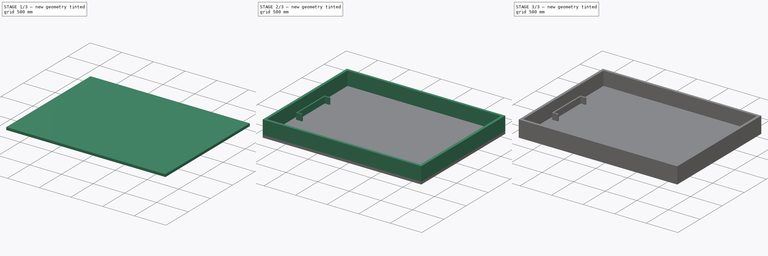
[diagram: build sequence overview — one tinted view per stage of 3, left to right]
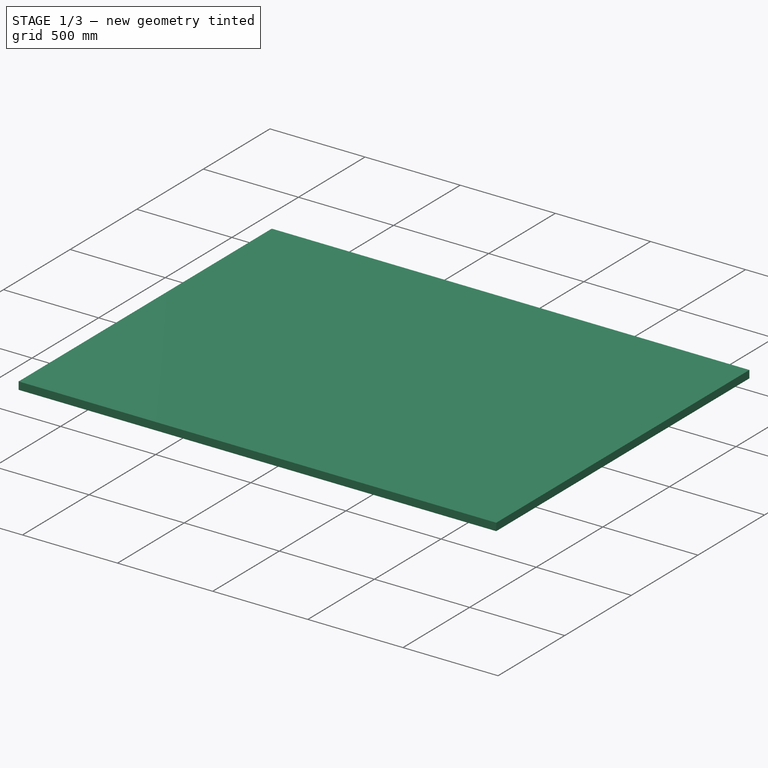
[diagram: stage 1 of 3 — iso view after this stage's code; geometry added in this stage tinted green]
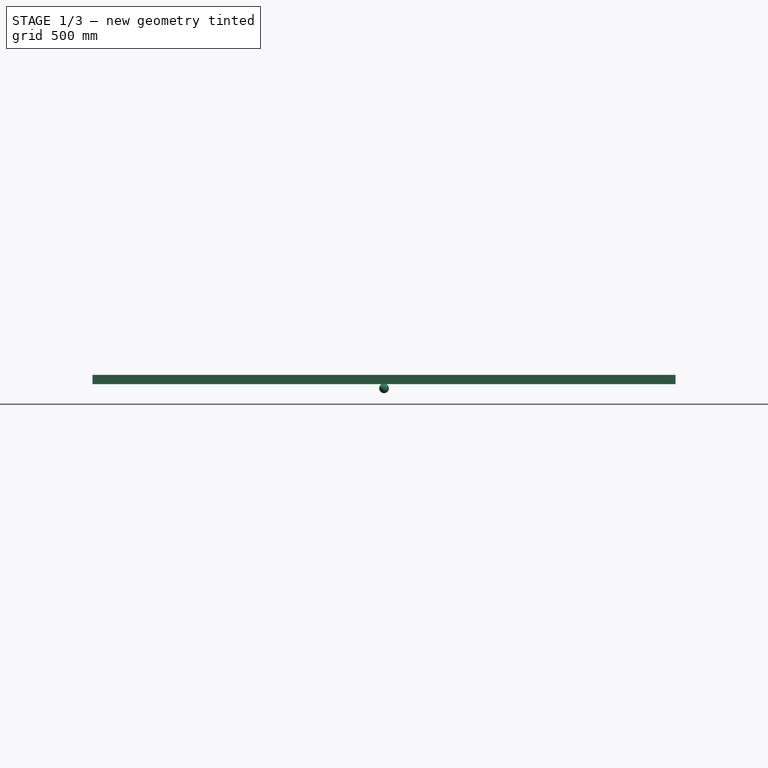
[diagram: stage 1 of 3 — front view after this stage's code; geometry added in this stage tinted green]
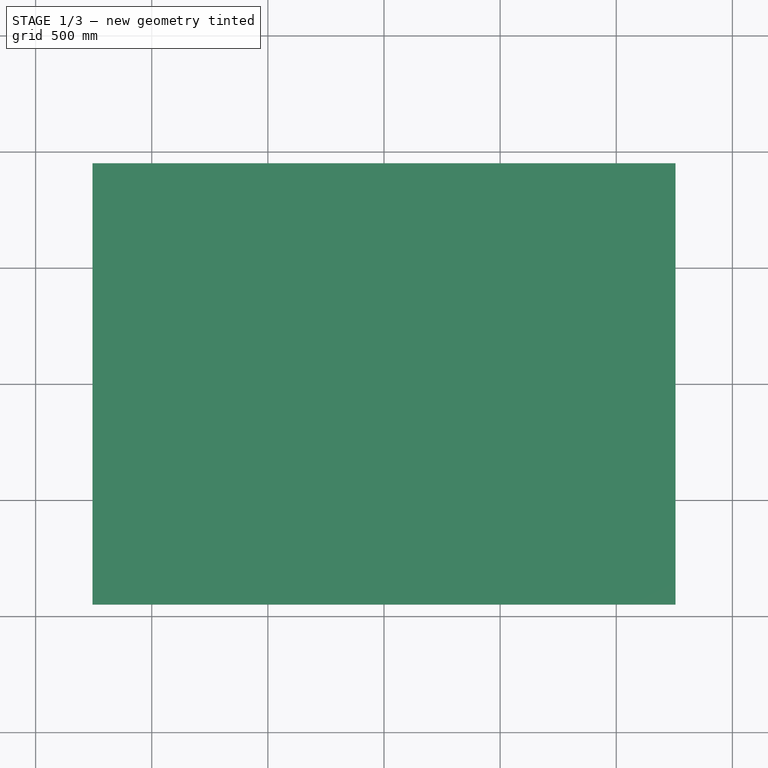
[diagram: stage 1 of 3 — top view after this stage's code; geometry added in this stage tinted green]
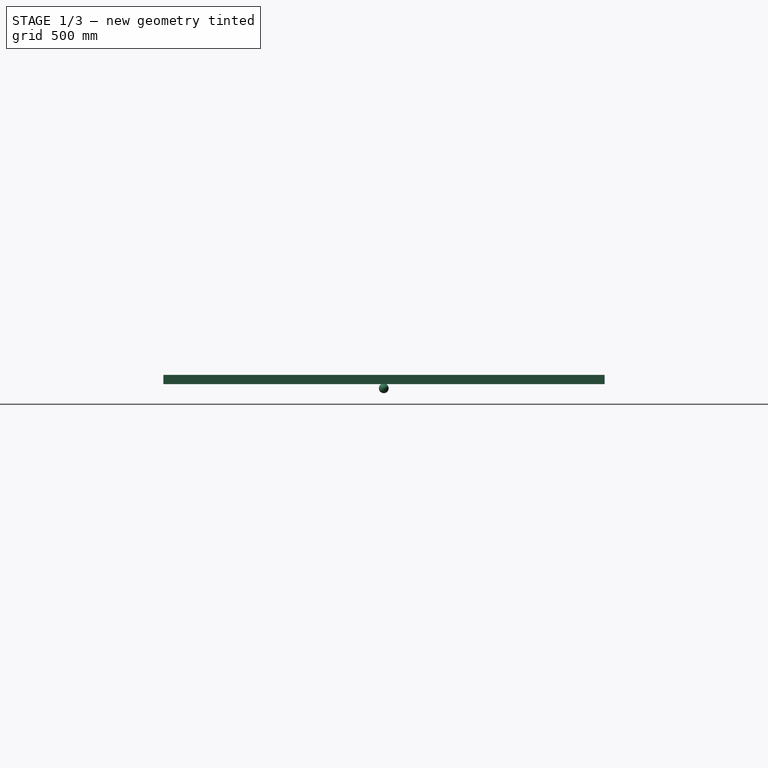
[diagram: stage 1 of 3 — right view after this stage's code; geometry added in this stage tinted green]
FCSTD DOCUMENT  (FreeCAD 0.21R33668 +7 (Git))
Label: Field
License: All rights reserved
LicenseURL: https://en.wikipedia.org/wiki/All_rights_reserved
objects: Sketcher::SketchObject×6, PartDesign::Pad×6, PartDesign::Body×1, Part::Sphere×1
note: 20 computed .brp shape members not serialized (recipe doc carries the construction recipe); baked Part::Feature solids carry a one-line shape summary decoded from their .brp

FEATURE [Sketcher::SketchObject] Sketch
  FullyConstrained = true
  MapMode = 5
  Support = -> [XY_Plane]
  sketch-geometry (4):
    g0: LineSegment StartX=-1255 StartY=950 StartZ=0 EndX=1255 EndY=950 EndZ=0
    g1: LineSegment StartX=1255 StartY=950 StartZ=0 EndX=1255 EndY=-950 EndZ=0
    g2: LineSegment StartX=1255 StartY=-950 StartZ=0 EndX=-1255 EndY=-950 EndZ=0
    g3: LineSegment StartX=-1255 StartY=-950 StartZ=0 EndX=-1255 EndY=950 EndZ=0
  constraints (10):
    c: Coincident(g0,g1)
    c: Coincident(g1,g2)
    c: Coincident(g2,g3)
    c: Coincident(g3,g0)
    c: Horizontal(g0)
    c: Vertical(g3)
    c: Symmetric(g2,g1,g-2)
    c: Symmetric(g1,g0,g-1)
    c: DistanceX(g0,g0) = 2510
    c: DistanceY(g1,g1) = 1900
FEATURE [PartDesign::Pad] Pad
  Direction = (0,0,1)
  Length = 40
  Length2 = 10
  Profile = -> Sketch
  ReferenceAxis = -> Sketch [N_Axis]
  Type = 0
FEATURE [PartDesign::Body] Body  label="Field"
  Group = -> [Sketch,Pad,Sketch001,Pad001,Sketch002,Pad002,Sketch003,Pad003,Sketch004,Pad004,Sketch005,Pad005]
  Origin = -> Origin
  Placement = pos=(0,0,-79) rot=(0,0,1;0rad)
  Tip = -> Pad005
FEATURE [Part::Sphere] Sphere  label="Sphère"
  Angle1 = -90
  Angle2 = 90
  Angle3 = 360
  AttacherType = Attacher::AttachEngine3D
  Placement = pos=(0.2,-1,-18) rot=(0,0,1;0rad)
  Radius = 21
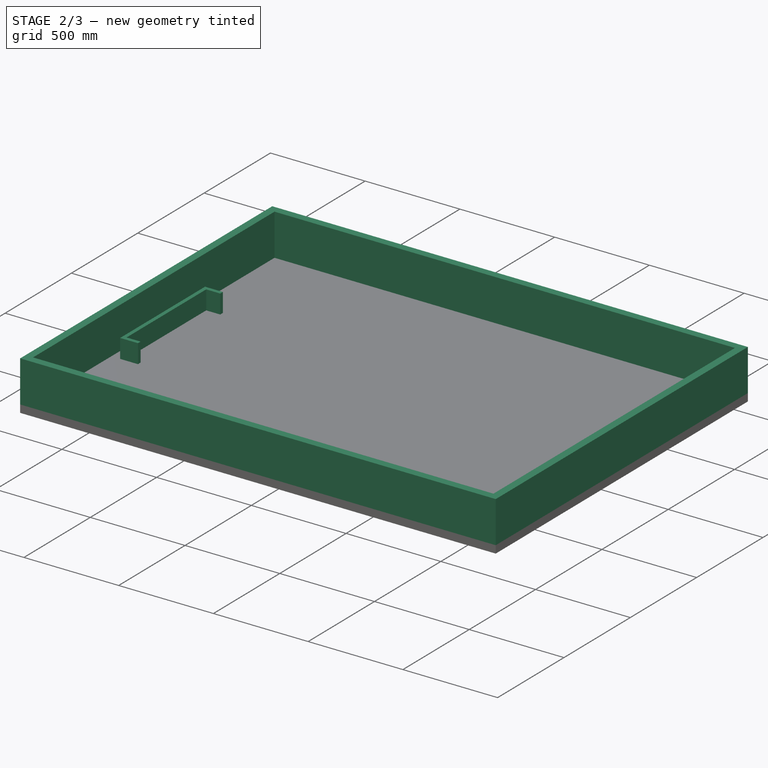
[diagram: stage 2 of 3 — iso view after this stage's code; geometry added in this stage tinted green]
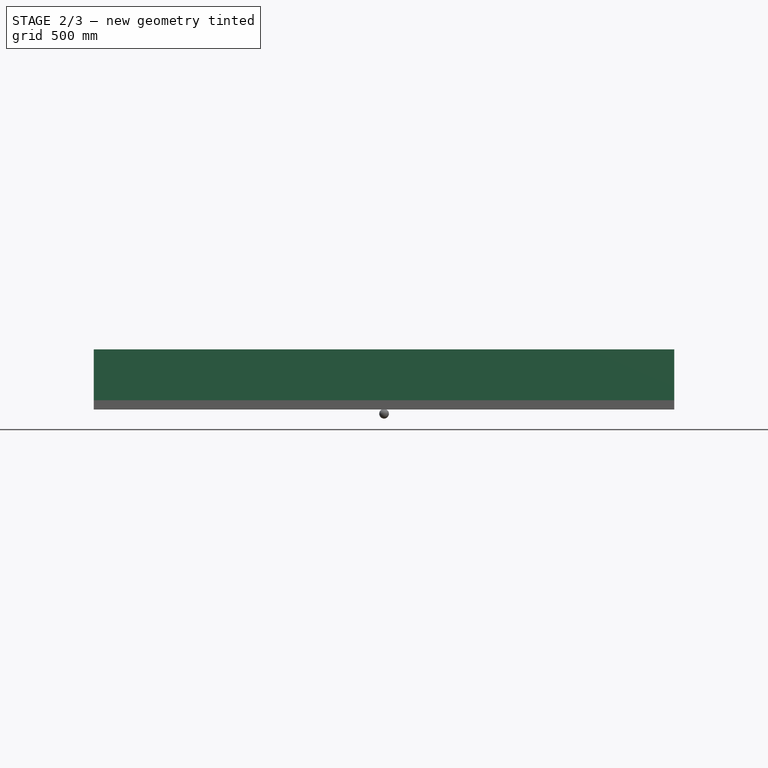
[diagram: stage 2 of 3 — front view after this stage's code; geometry added in this stage tinted green]
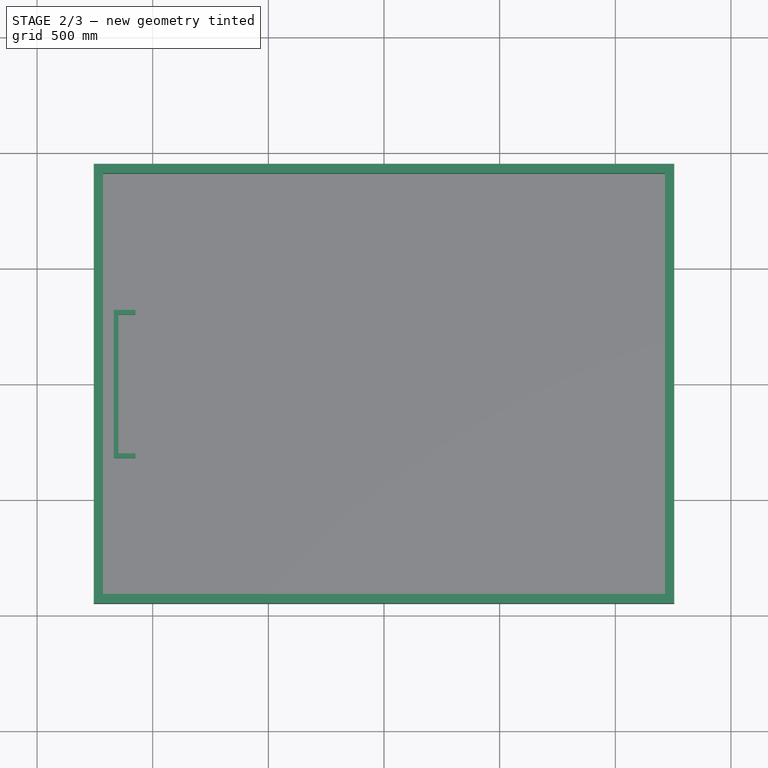
[diagram: stage 2 of 3 — top view after this stage's code; geometry added in this stage tinted green]
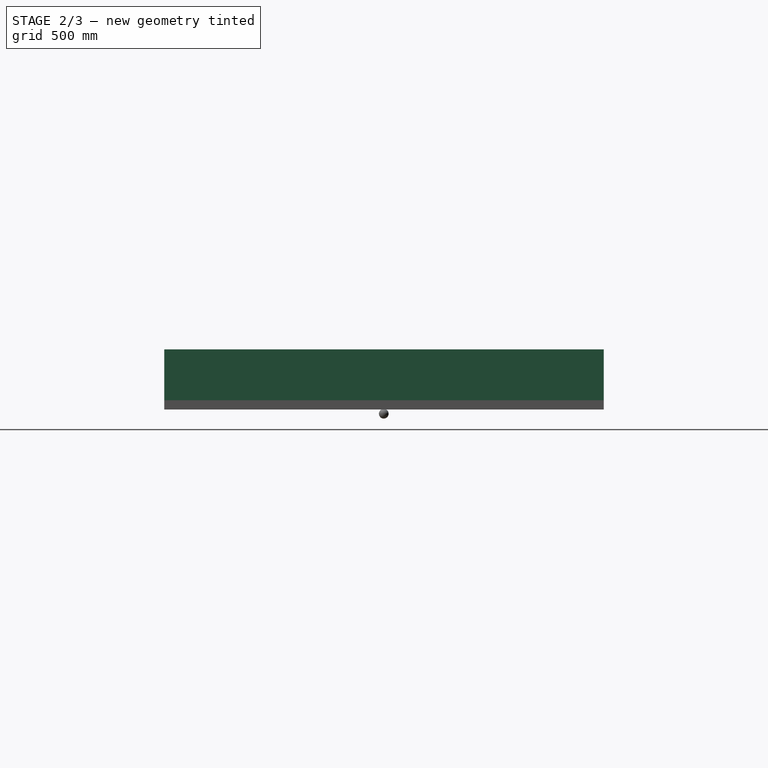
[diagram: stage 2 of 3 — right view after this stage's code; geometry added in this stage tinted green]
FEATURE [Sketcher::SketchObject] Sketch001
  FullyConstrained = true
  MapMode = 5
  Placement = pos=(0,0,40) rot=(0,0,1;0rad)
  Support = -> [Pad]
  sketch-geometry (8):
    g0: LineSegment StartX=-1215 StartY=910 StartZ=0 EndX=1215 EndY=910 EndZ=0
    g1: LineSegment StartX=1215 StartY=910 StartZ=0 EndX=1215 EndY=-910 EndZ=0
    g2: LineSegment StartX=1215 StartY=-910 StartZ=0 EndX=-1215 EndY=-910 EndZ=0
    g3: LineSegment StartX=-1215 StartY=-910 StartZ=0 EndX=-1215 EndY=910 EndZ=0
    g4: LineSegment StartX=-1255 StartY=950 StartZ=0 EndX=1255 EndY=950 EndZ=0
    g5: LineSegment StartX=1255 StartY=950 StartZ=0 EndX=1255 EndY=-950 EndZ=0
    g6: LineSegment StartX=1255 StartY=-950 StartZ=0 EndX=-1255 EndY=-950 EndZ=0
    g7: LineSegment StartX=-1255 StartY=-950 StartZ=0 EndX=-1255 EndY=950 EndZ=0
  constraints (20):
    c: Coincident(g0,g1)
    c: Coincident(g1,g2)
    c: Coincident(g2,g3)
    c: Coincident(g3,g0)
    c: Horizontal(g2)
    c: Vertical(g3)
    c: DistanceX(g0,g0) = 2430
    c: DistanceY(g1,g1) = 1820
    c: Symmetric(g0,g0,g-2)
    c: Symmetric(g0,g1,g-1)
    c: Coincident(g4,g5)
    c: Coincident(g5,g6)
    c: Coincident(g6,g7)
    c: Coincident(g7,g4)
    c: Horizontal(g6)
    c: Vertical(g7)
    c: Symmetric(g4,g4,g-2)
    c: Symmetric(g4,g5,g-1)
    c: DistanceY(g5,g5) = 1900
    c: DistanceX(g4,g4) = 2510
FEATURE [PartDesign::Pad] Pad001
  BaseFeature = -> Pad
  Direction = (0,0,1)
  Length = 220
  Length2 = 10
  Profile = -> Sketch001
  ReferenceAxis = -> Sketch001 [N_Axis]
  Type = 0
FEATURE [Sketcher::SketchObject] Sketch002
  FullyConstrained = true
  MapMode = 5
  Placement = pos=(0,0,40) rot=(0,0,1;0rad)
  Support = -> [Pad001]
  sketch-geometry (32):
    g0: LineSegment StartX=-1095 StartY=790 StartZ=0 EndX=1095 EndY=790 EndZ=0
    g1: LineSegment StartX=1095 StartY=790 StartZ=0 EndX=1095 EndY=-790 EndZ=0
    g2: LineSegment StartX=1095 StartY=-790 StartZ=0 EndX=-1095 EndY=-790 EndZ=0
    g3: LineSegment StartX=-1095 StartY=-790 StartZ=0 EndX=-1095 EndY=790 EndZ=0
    g4: LineSegment StartX=-1074.51 StartY=770 StartZ=0 EndX=1075.49 EndY=770 EndZ=0
    g5: LineSegment StartX=1075.49 StartY=-770 StartZ=0 EndX=-1074.51 EndY=-770 EndZ=0
    g6: LineSegment StartX=-1074.51 StartY=770 StartZ=0 EndX=-1074.51 EndY=400 EndZ=0
    g7: LineSegment StartX=-1074.51 StartY=-770 StartZ=0 EndX=-1074.51 EndY=-400 EndZ=0
    g8: LineSegment StartX=-1074.51 StartY=400 StartZ=0 EndX=-974.509 EndY=400 EndZ=0
    g9: ArcOfCircle CenterX=-974.509 CenterY=250 CenterZ=0 NormalX=0 NormalY=0 NormalZ=1 AngleXU=0 Radius=150 StartAngle=0 EndAngle=1.5708
    g10: LineSegment StartX=-1074.51 StartY=-400 StartZ=0 EndX=-974.509 EndY=-400 EndZ=0
    g11: ArcOfCircle CenterX=-974.509 CenterY=-250 CenterZ=0 NormalX=0 NormalY=0 NormalZ=1 AngleXU=0 Radius=150 StartAngle=4.71239 EndAngle=6.28319
    g12: LineSegment StartX=-824.509 StartY=-250 StartZ=0 EndX=-824.509 EndY=250 EndZ=0
    g13: LineSegment StartX=-1074.51 StartY=-380 StartZ=0 EndX=-974.509 EndY=-380 EndZ=0
    g14: LineSegment StartX=-1074.51 StartY=380 StartZ=0 EndX=-974.509 EndY=380 EndZ=0
    g15: LineSegment StartX=-1074.51 StartY=380 StartZ=0 EndX=-1074.51 EndY=-380 EndZ=0
    g16: LineSegment StartX=-844.509 StartY=250 StartZ=0 EndX=-844.509 EndY=-250 EndZ=0
    g17: ArcOfCircle CenterX=-974.509 CenterY=-250 CenterZ=0 NormalX=0 NormalY=0 NormalZ=1 AngleXU=0 Radius=130 StartAngle=4.71239 EndAngle=6.28319
    g18: ArcOfCircle CenterX=-974.509 CenterY=250 CenterZ=0 NormalX=0 NormalY=0 NormalZ=1 AngleXU=0 Radius=130 StartAngle=6.28319 EndAngle=7.85398
    g19: LineSegment StartX=1075.49 StartY=-770 StartZ=0 EndX=1075.49 EndY=-400 EndZ=0
    g20: LineSegment StartX=1075.49 StartY=770 StartZ=0 EndX=1075.49 EndY=400 EndZ=0
    g21: LineSegment StartX=1075.49 StartY=400 StartZ=0 EndX=975.491 EndY=400 EndZ=0
    g22: ArcOfCircle CenterX=975.491 CenterY=250 CenterZ=0 NormalX=0 NormalY=0 NormalZ=1 AngleXU=0 Radius=150 StartAngle=1.5708 EndAngle=3.14159
    g23: LineSegment StartX=1075.49 StartY=-400 StartZ=0 EndX=975.491 EndY=-400 EndZ=0
    g24: ArcOfCircle CenterX=975.491 CenterY=-250 CenterZ=0 NormalX=0 NormalY=0 NormalZ=1 AngleXU=0 Radius=150 StartAngle=3.14159 EndAngle=4.71239
    g25: LineSegment StartX=825.491 StartY=-250 StartZ=0 EndX=825.491 EndY=250 EndZ=0
    g26: LineSegment StartX=1075.49 StartY=380 StartZ=0 EndX=975.491 EndY=380 EndZ=0
    g27: LineSegment StartX=845.491 StartY=250 StartZ=0 EndX=845.491 EndY=-250 EndZ=0
    g28: ArcOfCircle CenterX=975.491 CenterY=250 CenterZ=0 NormalX=0 NormalY=0 NormalZ=1 AngleXU=0 Radius=130 StartAngle=1.5708 EndAngle=3.14159
    g29: LineSegment StartX=1075.49 StartY=-380 StartZ=0 EndX=975.491 EndY=-380 EndZ=0
    g30: ArcOfCircle CenterX=975.491 CenterY=-250 CenterZ=0 NormalX=0 NormalY=0 NormalZ=1 AngleXU=0 Radius=130 StartAngle=3.14159 EndAngle=4.71239
    g31: LineSegment StartX=1075.49 StartY=-380 StartZ=0 EndX=1075.49 EndY=380 EndZ=0
  constraints (96):
    c: Coincident(g0,g1)
    c: Coincident(g1,g2)
    c: Coincident(g2,g3)
    c: Coincident(g3,g0)
    c: Horizontal(g2)
    c: Vertical(g3)
    c: Symmetric(g1,g0,g-1)
    c: Symmetric(g0,g0,g-2)
    c: DistanceX(g0,g0) = 2190
    c: DistanceY(g1,g1) = 1580
    c: Horizontal(g5)
    c: Symmetric(g5,g4,g-1)
    c: DistanceX(g4,g4) = 2150
    c: DistanceY(g5,g4) = 1540
    c: Coincident(g6,g4)
    c: Vertical(g6)
    c: Coincident(g7,g5)
    c: Vertical(g7)
    c: DistanceY(g7,g6) = 800
    c: Symmetric(g6,g7,g-1)
    c: Coincident(g8,g6)
    c: Horizontal(g8)
    c: Coincident(g9,g8)
    c: DistanceX(g6,g9) = 250
    c: Coincident(g10,g7)
    c: Horizontal(g10)
    c: Coincident(g11,g10)
    c: Vertical(g12)
    c: DistanceX(g8,g9) = 150
    c: DistanceX(g10,g11) = 150
    c: Horizontal(g13)
    c: DistanceY(g7,g13) = 20
    c: Equal(g13,g10)
    c: Horizontal(g14)
    c: Equal(g8,g14)
    c: DistanceY(g14,g6) = 20
    c: Coincident(g15,g14)
    c: Coincident(g15,g13)
    c: Vertical(g15)
    c: Vertical(g16)
    c: Equal(g16,g12)
    c: DistanceX(g16,g9) = 20
    c: Coincident(g17,g11)
    c: Coincident(g17,g13)
    c: Coincident(g17,g16)
    c: Coincident(g18,g9)
    c: Coincident(g18,g14)
    c: Coincident(g18,g16)
    c: Radius(g9) = 150
    c: Radius(g18) = 130
    c: Radius(g17) = 130
    c: Coincident(g12,g11)
    c: Coincident(g12,g9)
    c: DistanceY(g9,g8) = 150
    c: Coincident(g19,g5)
    c: Vertical(g19)
    c: Coincident(g20,g4)
    c: DistanceY(g19,g20) = 800
    c: Symmetric(g20,g19,g-1)
    c: Coincident(g21,g20)
    c: Horizontal(g21)
    c: Coincident(g22,g21)
    c: Coincident(g23,g19)
    c: Horizontal(g23)
    c: Coincident(g24,g23)
    c: DistanceX(g24,g19) = 250
    c: DistanceX(g22,g20) = 250
    c: Horizontal(g26)
    c: Equal(g21,g26)
    c: DistanceX(g22,g22) = 150
    c: DistanceY(g26,g20) = 20
    c: DistanceY(g22,g21) = 150
    c: Vertical(g27)
    c: DistanceX(g24,g27) = 20
    c: Coincident(g28,g22)
    c: Coincident(g28,g26)
    c: Coincident(g28,g27)
    c: Horizontal(g29)
    c: Coincident(g30,g27)
    c: Coincident(g30,g29)
    c: DistanceY(g19,g29) = 20
    c: Coincident(g31,g29)
    c: Coincident(g31,g26)
    c: Vertical(g31)
    c: Equal(g29,g23)
    c: Equal(g27,g25)
    c: Radius(g30) = 130
    c: Radius(g28) = 130
    c: Radius(g24) = 150
    c: DistanceY(g29,g27) = 130
    c: Coincident(g24,g25)
    c: DistanceX(g24,g23) = 150
    c: DistanceX(g27,g29) = 130
    c: DistanceY(g23,g24) = 150
    c: Coincident(g22,g25)
    c: Horizontal(g4)
FEATURE [PartDesign::Pad] Pad002
  BaseFeature = -> Pad001
  Direction = (0,0,1)
  Length = 0.001
  Length2 = 10
  Profile = -> Sketch002
  ReferenceAxis = -> Sketch002 [N_Axis]
  Type = 0
FEATURE [Sketcher::SketchObject] Sketch003
  ExternalGeometry = -> [Pad002]
  FullyConstrained = true
  MapMode = 5
  Placement = pos=(0,0,40) rot=(0,0,1;0rad)
  Support = -> [Pad002]
  sketch-geometry (8):
    g0: LineSegment StartX=-1148.51 StartY=300 StartZ=0 EndX=-1148.51 EndY=-300 EndZ=0
    g1: LineSegment StartX=-1148.51 StartY=300 StartZ=0 EndX=-1074.51 EndY=300 EndZ=0
    g2: LineSegment StartX=-1148.51 StartY=-300 StartZ=0 EndX=-1074.51 EndY=-300 EndZ=0
    g3: LineSegment StartX=-1074.51 StartY=-300 StartZ=0 EndX=-1074.51 EndY=-320 EndZ=0
    g4: LineSegment StartX=-1074.51 StartY=-320 StartZ=0 EndX=-1168.51 EndY=-320 EndZ=0
    g5: LineSegment StartX=-1074.51 StartY=300 StartZ=0 EndX=-1074.51 EndY=320 EndZ=0
    g6: LineSegment StartX=-1074.51 StartY=320 StartZ=0 EndX=-1168.51 EndY=320 EndZ=0
    g7: LineSegment StartX=-1168.51 StartY=320 StartZ=0 EndX=-1168.51 EndY=-320 EndZ=0
  constraints (23):
    c: Symmetric(g0,g0,g-1)
    c: DistanceY(g0,g0) = 600
    c: Coincident(g1,g0)
    c: Horizontal(g1)
    c: Coincident(g2,g0)
    c: Horizontal(g2)
    c: Equal(g1,g2)
    c: DistanceX(g1,g1) = 74
    c: Coincident(g3,g2)
    c: Vertical(g3)
    c: DistanceY(g3,g3) = 20
    c: Coincident(g4,g3)
    c: Horizontal(g4)
    c: DistanceX(g4,g0) = 20
    c: Coincident(g5,g1)
    c: Vertical(g5)
    c: Coincident(g6,g5)
    c: Horizontal(g6)
    c: DistanceY(g5,g5) = 20
    c: DistanceX(g6,g0) = 20
    c: Coincident(g7,g6)
    c: Coincident(g7,g4)
    c: PointOnObject(g5,g-4)
FEATURE [PartDesign::Pad] Pad003
  BaseFeature = -> Pad002
  Direction = (0,0,1)
  Length = 100
  Length2 = 10
  Profile = -> Sketch003
  ReferenceAxis = -> Sketch003 [N_Axis]
  Type = 0
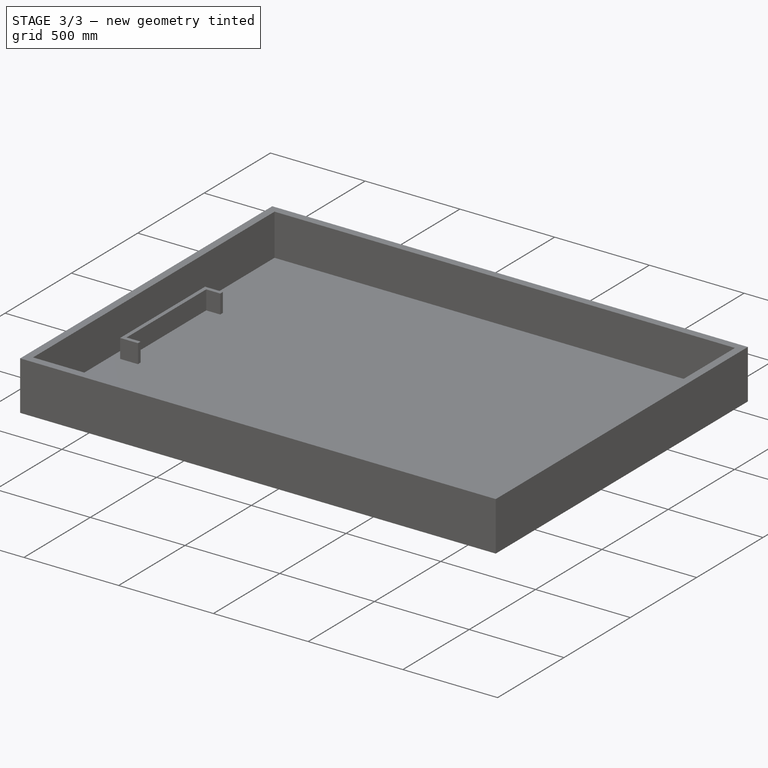
[diagram: stage 3 of 3 — iso view after this stage's code; geometry added in this stage tinted green]
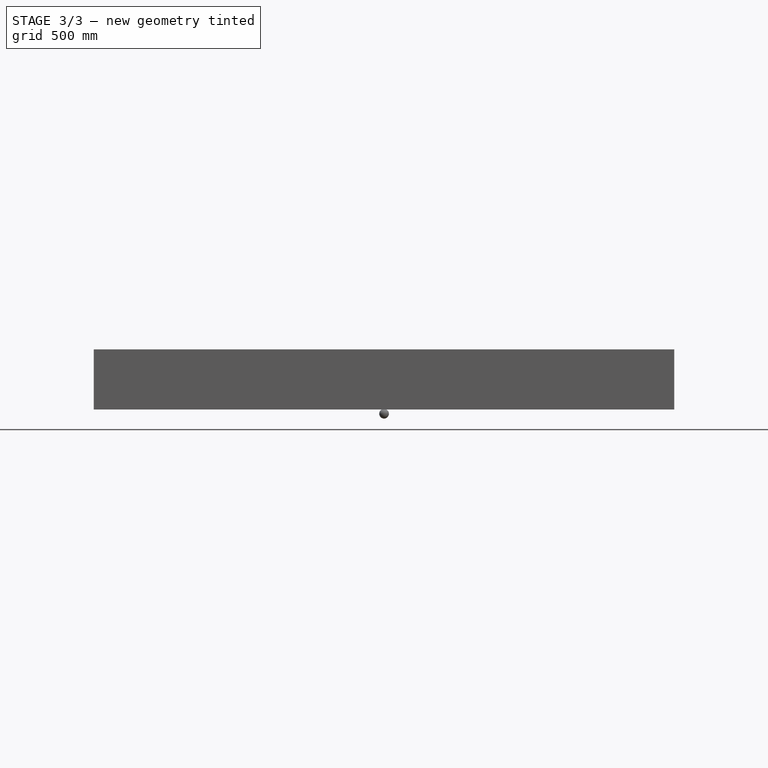
[diagram: stage 3 of 3 — front view after this stage's code; geometry added in this stage tinted green]
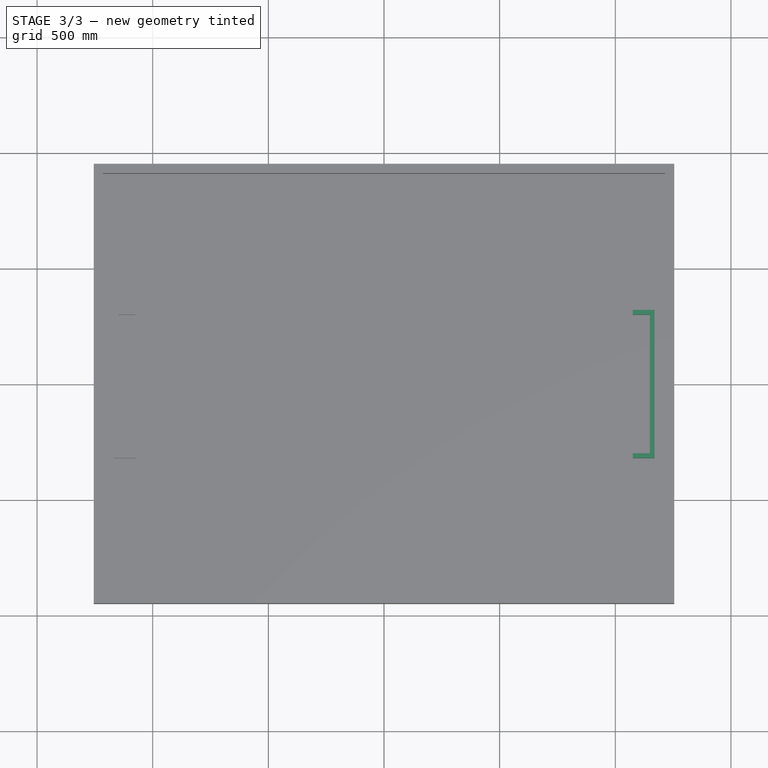
[diagram: stage 3 of 3 — top view after this stage's code; geometry added in this stage tinted green]
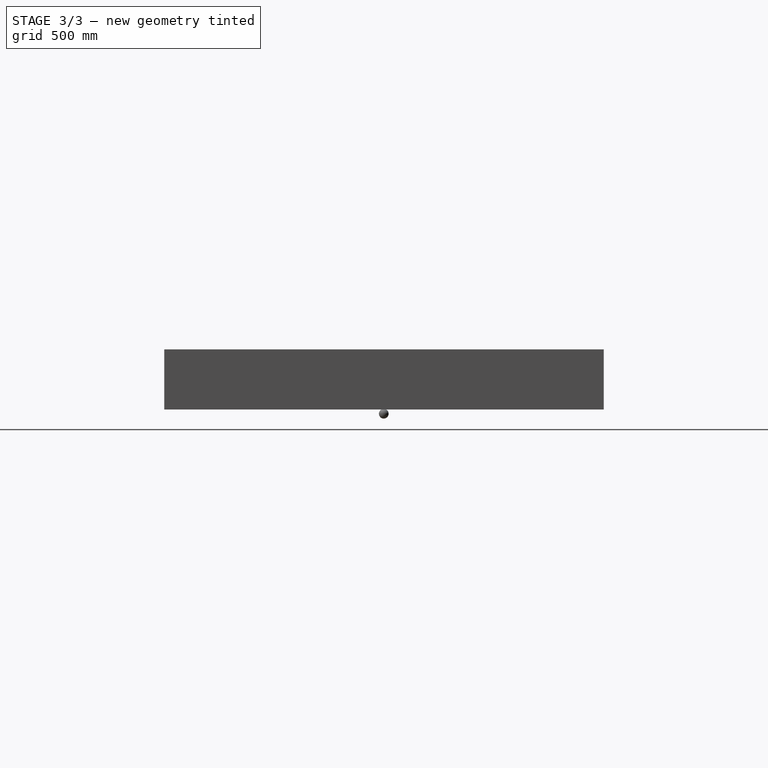
[diagram: stage 3 of 3 — right view after this stage's code; geometry added in this stage tinted green]
FEATURE [Sketcher::SketchObject] Sketch004
  ExternalGeometry = -> [Pad002]
  FullyConstrained = true
  MapMode = 5
  Placement = pos=(0,0,40) rot=(0,0,1;0rad)
  Support = -> [Pad002]
  sketch-geometry (8):
    g0: LineSegment StartX=1169.49 StartY=320 StartZ=0 EndX=1169.49 EndY=-320 EndZ=0
    g1: LineSegment StartX=1169.49 StartY=320 StartZ=0 EndX=1075.49 EndY=320 EndZ=0
    g2: LineSegment StartX=1169.49 StartY=-320 StartZ=0 EndX=1075.49 EndY=-320 EndZ=0
    g3: LineSegment StartX=1075.49 StartY=-320 StartZ=0 EndX=1075.49 EndY=-300 EndZ=0
    g4: LineSegment StartX=1075.49 StartY=-300 StartZ=0 EndX=1149.49 EndY=-300 EndZ=0
    g5: LineSegment StartX=1075.49 StartY=320 StartZ=0 EndX=1075.49 EndY=300 EndZ=0
    g6: LineSegment StartX=1075.49 StartY=300 StartZ=0 EndX=1149.49 EndY=300 EndZ=0
    g7: LineSegment StartX=1149.49 StartY=300 StartZ=0 EndX=1149.49 EndY=-300 EndZ=0
  constraints (23):
    c: Symmetric(g0,g0,g-1)
    c: Coincident(g1,g0)
    c: Horizontal(g1)
    c: Coincident(g2,g0)
    c: Horizontal(g2)
    c: Coincident(g3,g2)
    c: Vertical(g3)
    c: Coincident(g4,g3)
    c: Horizontal(g4)
    c: Coincident(g5,g1)
    c: Vertical(g5)
    c: Coincident(g6,g5)
    c: Horizontal(g6)
    c: Coincident(g7,g6)
    c: Coincident(g7,g4)
    c: DistanceX(g3,g4) = 74
    c: DistanceY(g2,g3) = 20
    c: PointOnObject(g2,g-4)
    c: DistanceY(g5,g5) = 20
    c: Equal(g1,g2)
    c: DistanceX(g4,g0) = 20
    c: DistanceY(g4,g6) = 600
    c: Vertical(g7)
FEATURE [PartDesign::Pad] Pad004
  BaseFeature = -> Pad003
  Direction = (0,0,1)
  Length = 100
  Length2 = 10
  Profile = -> Sketch004
  ReferenceAxis = -> Sketch004 [N_Axis]
  Type = 0
FEATURE [Sketcher::SketchObject] Sketch005
  ExternalGeometry = -> [Pad004]
  FullyConstrained = true
  MapMode = 5
  Placement = pos=(0,0,40) rot=(0,0,1;0rad)
  Support = -> [Pad004]
  sketch-geometry (11):
    g0: Circle CenterX=0 CenterY=0 CenterZ=0 NormalX=0 NormalY=0 NormalZ=1 AngleXU=0 Radius=300
    g1: GeomPoint X=0 Y=0 Z=0
    g2: GeomPoint X=-645 Y=390 Z=0
    g3: GeomPoint X=645 Y=390 Z=0
    g4: GeomPoint X=-645 Y=-390 Z=0
    g5: GeomPoint X=645 Y=-390 Z=0
    g6: Circle CenterX=-645 CenterY=-390 CenterZ=0 NormalX=0 NormalY=0 NormalZ=1 AngleXU=0 Radius=2
    g7: Circle CenterX=-645 CenterY=390 CenterZ=0 NormalX=0 NormalY=0 NormalZ=1 AngleXU=0 Radius=2
    g8: Circle CenterX=645 CenterY=390 CenterZ=0 NormalX=0 NormalY=0 NormalZ=1 AngleXU=0 Radius=2
    g9: Circle CenterX=645 CenterY=-390 CenterZ=0 NormalX=0 NormalY=0 NormalZ=1 AngleXU=0 Radius=2
    g10: Circle CenterX=0 CenterY=0 CenterZ=0 NormalX=0 NormalY=0 NormalZ=1 AngleXU=0 Radius=2
  constraints (21):
    c: Coincident(g0,g-1)
    c: Coincident(g1,g0)
    c: Diameter(g0) = 600
    c: DistanceX(g-7,g4) = 450
    c: DistanceX(g5,g-6) = 450
    c: DistanceY(g-6,g5) = 400
    c: DistanceY(g-7,g4) = 400
    c: DistanceY(g2,g-8) = 400
    c: DistanceY(g3,g-4) = 400
    c: DistanceX(g3,g-4) = 450
    c: DistanceX(g-8,g2) = 450
    c: Coincident(g6,g4)
    c: Diameter(g6) = 4
    c: Coincident(g7,g2)
    c: Coincident(g8,g3)
    c: Coincident(g9,g5)
    c: Diameter(g8) = 4
    c: Diameter(g7) = 4
    c: Diameter(g9) = 4
    c: Coincident(g10,g0)
    c: Diameter(g10) = 4
FEATURE [PartDesign::Pad] Pad005
  BaseFeature = -> Pad004
  Direction = (0,0,1)
  Length = 0.001
  Length2 = 10
  Profile = -> Sketch005
  ReferenceAxis = -> Sketch005 [N_Axis]
  Type = 0
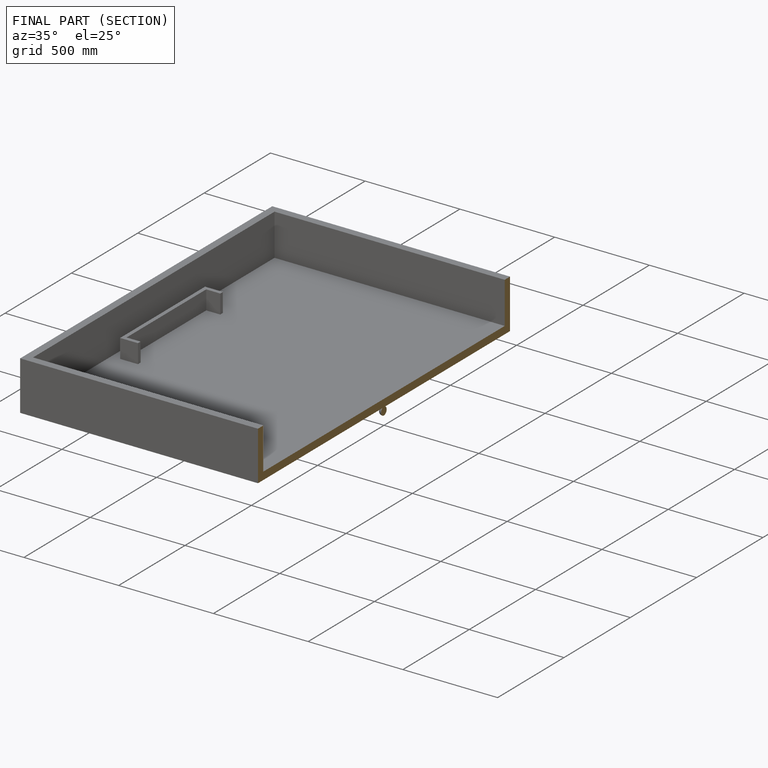
[diagram: finished part — half-section view (interior)]
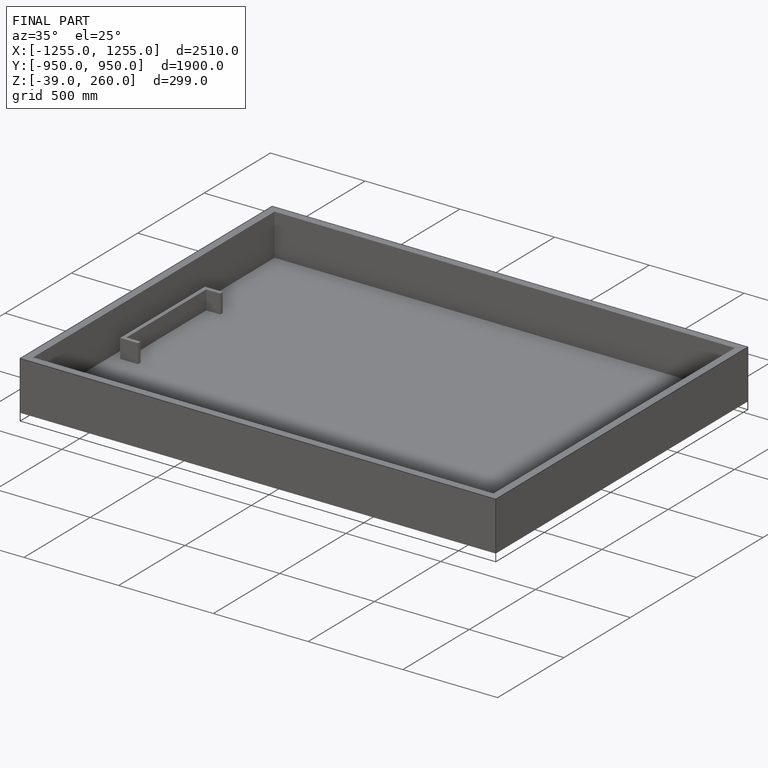
[diagram: finished part — iso view with bounding-box wireframe]
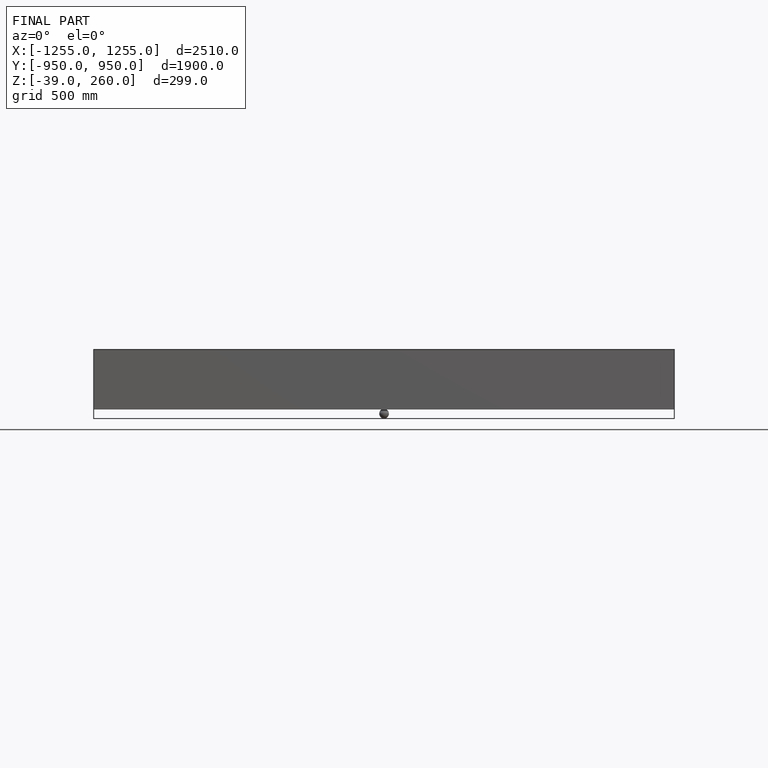
[diagram: finished part — front view with bounding-box wireframe]
